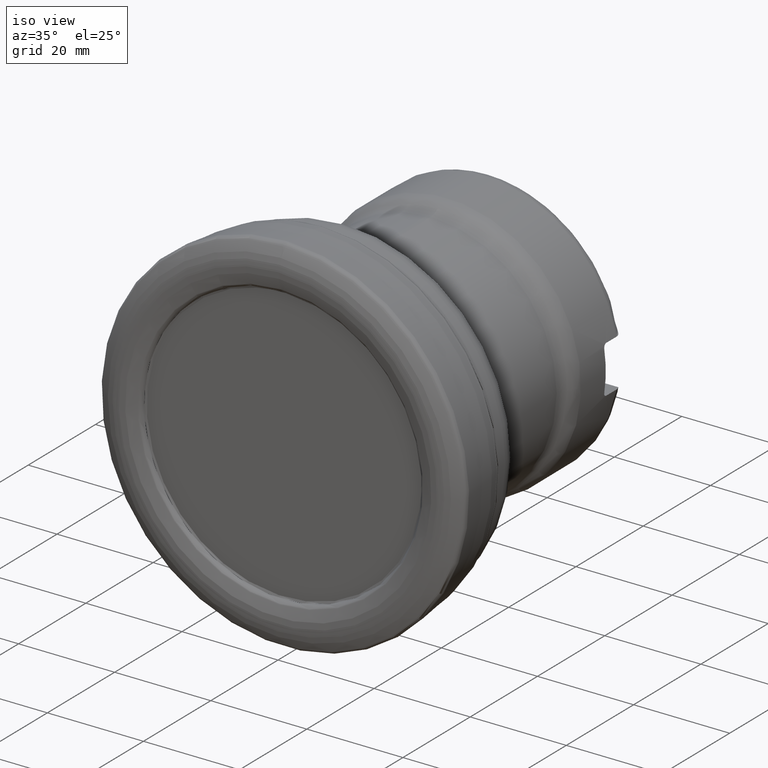
[diagram: clean part render]
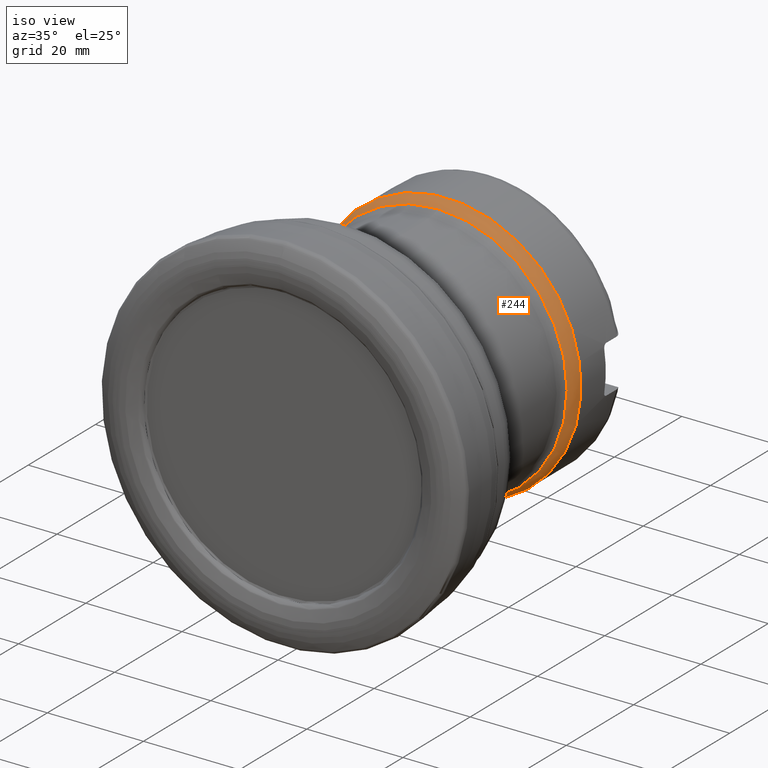
[diagram: same view with one face highlighted and labeled with its STEP entity id]
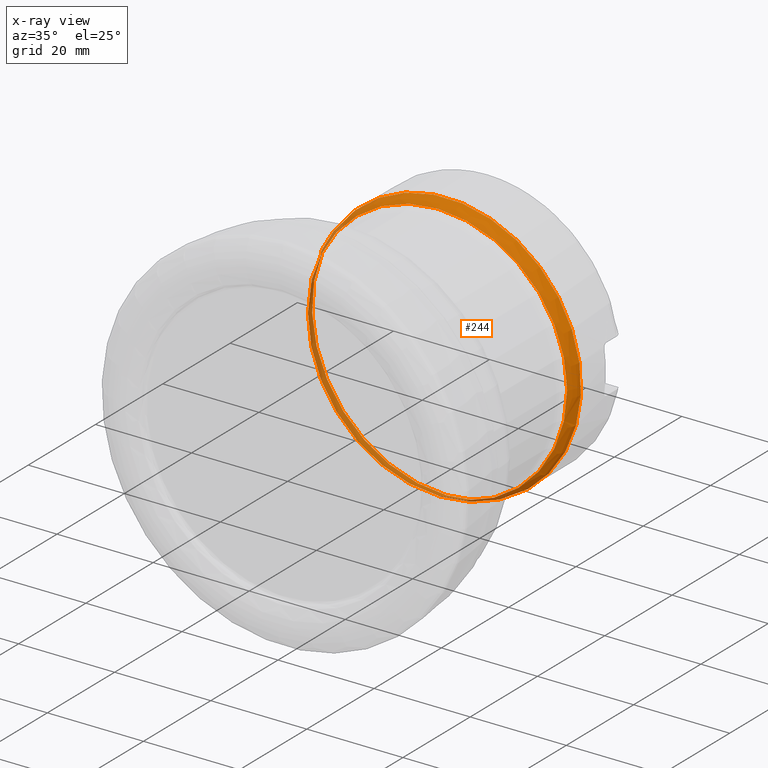
[diagram: x-ray of the same camera — body ghosted, the highlighted face saturated]
A machine part, iso view. The second image highlights one B-rep face of the part: STEP entity #244.
The next image is the same camera in x-ray: the body ghosted, the highlighted face saturated — about 22% of this face is hidden behind the body in this view.
In plain terms, the highlighted toroidal blend (fillet) surface has major radius 24 mm and minor (blend) radius 4 mm.
Its self-contained STEP definition (entity closure, byte-faithful):
#186=TOROIDAL_SURFACE('',#1153,24.,4.);
#244=ADVANCED_FACE('',(#433,#434),#186,.T.);
#433=FACE_BOUND('',#539,.T.);
#434=FACE_BOUND('',#540,.T.);
#539=EDGE_LOOP('',(#735));
#540=EDGE_LOOP('',(#736));
#735=ORIENTED_EDGE('',*,*,#994,.F.);
#736=ORIENTED_EDGE('',*,*,#921,.F.);
#831=VERTEX_POINT('',#1458);
#888=VERTEX_POINT('',#1830);
#921=EDGE_CURVE('',#831,#831,#1033,.T.);
#994=EDGE_CURVE('',#888,#888,#1062,.T.);
#1033=CIRCLE('',#1092,28.);
#1062=CIRCLE('',#1150,26.9714285714286);
#1092=AXIS2_PLACEMENT_3D('',#1457,#1197,#1198);
#1150=AXIS2_PLACEMENT_3D('',#1829,#1333,#1334);
#1153=AXIS2_PLACEMENT_3D('',#1833,#1339,#1340);
#1197=DIRECTION('',(0.,1.,0.));
#1198=DIRECTION('',(0.,0.,-1.));
#1333=DIRECTION('',(0.,-1.,0.));
#1334=DIRECTION('',(0.,0.,-1.));
#1339=DIRECTION('',(0.,-1.,0.));
#1340=DIRECTION('',(0.,0.,-1.));
#1457=CARTESIAN_POINT('',(0.,50.1148685134309,0.));
#1458=CARTESIAN_POINT('',(0.,50.1148685134309,-28.));
#1829=CARTESIAN_POINT('',(0.,47.4370686245485,0.));
#1830=CARTESIAN_POINT('',(0.,47.4370686245485,-26.9714285714286));
#1833=CARTESIAN_POINT('',(0.,50.1148685134309,0.));